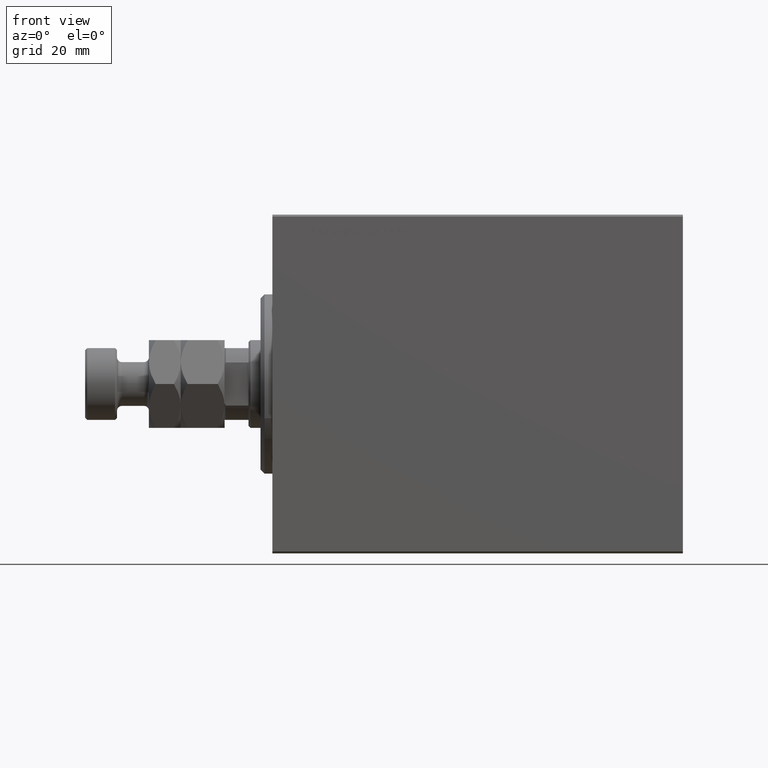
[diagram: clean part render]
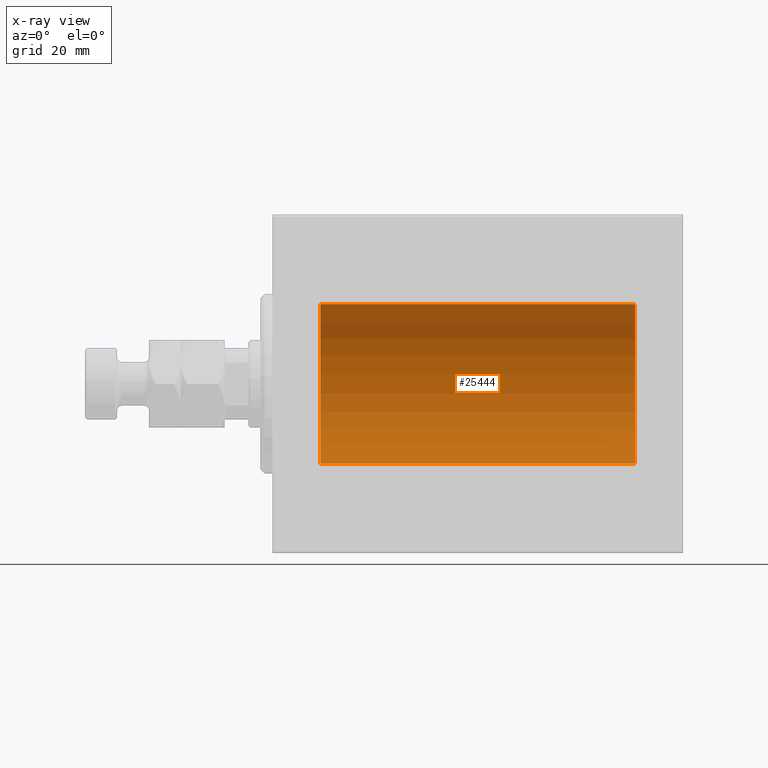
[diagram: x-ray — body ghosted, one internal face saturated and labeled with its STEP entity id]
A machine part, front view, then the same camera in x-ray: the body is ghosted and one INTERNAL B-rep face — a face not visible from any outside direction — is saturated and labeled: STEP entity #25444.
In plain terms, the highlighted cylindrical surface (partial cylindrical patch) has radius 20 mm, axis along (-1, -0, -0).
Its self-contained STEP definition (entity closure, byte-faithful):
#972 = DIRECTION ( 'NONE',  ( -1.000000000000000000, -0.000000000000000000, -0.000000000000000000 ) ) ;
#1506 = CARTESIAN_POINT ( 'NONE',  ( 91.00000000000000000, 0.000000000000000000, 0.000000000000000000 ) ) ;
#2130 = VERTEX_POINT ( 'NONE', #9529 ) ;
#3429 = AXIS2_PLACEMENT_3D ( 'NONE', #1506, #22627, #19846 ) ;
#6052 = EDGE_CURVE ( 'NONE', #25870, #2130, #31296, .T. ) ;
#6782 = DIRECTION ( 'NONE',  ( -1.000000000000000000, -0.000000000000000000, -0.000000000000000000 ) ) ;
#7193 = CARTESIAN_POINT ( 'NONE',  ( 91.00000000000000000, 0.000000000000000000, 20.00000000000000000 ) ) ;
#7858 = CARTESIAN_POINT ( 'NONE',  ( 91.00000000000000000, 0.000000000000000000, 20.00000000000000000 ) ) ;
#9529 = CARTESIAN_POINT ( 'NONE',  ( 91.00000000000000000, 2.449293598294706513E-15, -20.00000000000000000 ) ) ;
#9747 = AXIS2_PLACEMENT_3D ( 'NONE', #19162, #36834, #37282 ) ;
#10350 = CYLINDRICAL_SURFACE ( 'NONE', #23810, 20.00000000000000000 ) ;
#11959 = CIRCLE ( 'NONE', #9747, 20.00000000000000000 ) ;
#12012 = CARTESIAN_POINT ( 'NONE',  ( 11.99999999999999645, 2.449293598294706513E-15, -20.00000000000000000 ) ) ;
#15301 = VECTOR ( 'NONE', #6782, 1000.000000000000000 ) ;
#15652 = EDGE_CURVE ( 'NONE', #2130, #40403, #24014, .T. ) ;
#16386 = VERTEX_POINT ( 'NONE', #23793 ) ;
#16789 = DIRECTION ( 'NONE',  ( -1.000000000000000000, -0.000000000000000000, -0.000000000000000000 ) ) ;
#19162 = CARTESIAN_POINT ( 'NONE',  ( 11.99999999999999645, 0.000000000000000000, 0.000000000000000000 ) ) ;
#19846 = DIRECTION ( 'NONE',  ( 0.000000000000000000, 0.000000000000000000, 1.000000000000000000 ) ) ;
#20228 = CARTESIAN_POINT ( 'NONE',  ( 91.00000000000000000, 0.000000000000000000, 0.000000000000000000 ) ) ;
#20862 = ORIENTED_EDGE ( 'NONE', *, *, #24469, .T. ) ;
#22627 = DIRECTION ( 'NONE',  ( -1.000000000000000000, 0.000000000000000000, 0.000000000000000000 ) ) ;
#23793 = CARTESIAN_POINT ( 'NONE',  ( 11.99999999999999645, 0.000000000000000000, 20.00000000000000000 ) ) ;
#23810 = AXIS2_PLACEMENT_3D ( 'NONE', #20228, #16789, #24362 ) ;
#24014 = LINE ( 'NONE', #38245, #15301 ) ;
#24103 = EDGE_CURVE ( 'NONE', #16386, #40403, #11959, .T. ) ;
#24362 = DIRECTION ( 'NONE',  ( 0.000000000000000000, 0.000000000000000000, 1.000000000000000000 ) ) ;
#24469 = EDGE_CURVE ( 'NONE', #25870, #16386, #31753, .T. ) ;
#24672 = EDGE_LOOP ( 'NONE', ( #31142, #40137, #20862, #34260 ) ) ;
#25444 = ADVANCED_FACE ( 'NONE', ( #45010 ), #10350, .F. ) ;
#25870 = VERTEX_POINT ( 'NONE', #7193 ) ;
#31142 = ORIENTED_EDGE ( 'NONE', *, *, #15652, .F. ) ;
#31296 = CIRCLE ( 'NONE', #3429, 20.00000000000000000 ) ;
#31753 = LINE ( 'NONE', #7858, #36163 ) ;
#34260 = ORIENTED_EDGE ( 'NONE', *, *, #24103, .T. ) ;
#36163 = VECTOR ( 'NONE', #972, 1000.000000000000000 ) ;
#36834 = DIRECTION ( 'NONE',  ( -1.000000000000000000, 0.000000000000000000, 0.000000000000000000 ) ) ;
#37282 = DIRECTION ( 'NONE',  ( 0.000000000000000000, 0.000000000000000000, 1.000000000000000000 ) ) ;
#38245 = CARTESIAN_POINT ( 'NONE',  ( 91.00000000000000000, 2.449293598294706513E-15, -20.00000000000000000 ) ) ;
#40137 = ORIENTED_EDGE ( 'NONE', *, *, #6052, .F. ) ;
#40403 = VERTEX_POINT ( 'NONE', #12012 ) ;
#45010 = FACE_OUTER_BOUND ( 'NONE', #24672, .T. ) ;